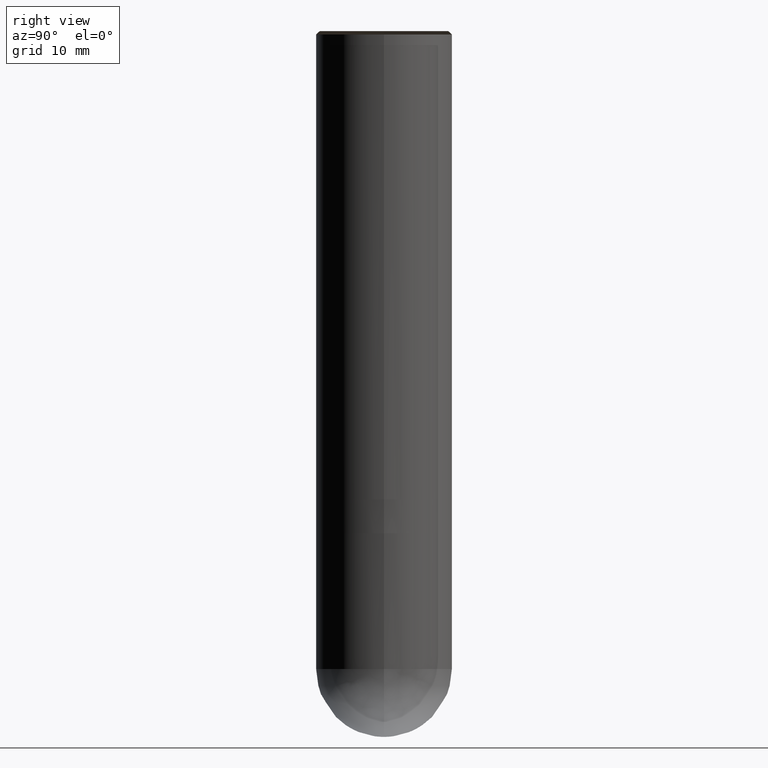
[diagram: clean part render]
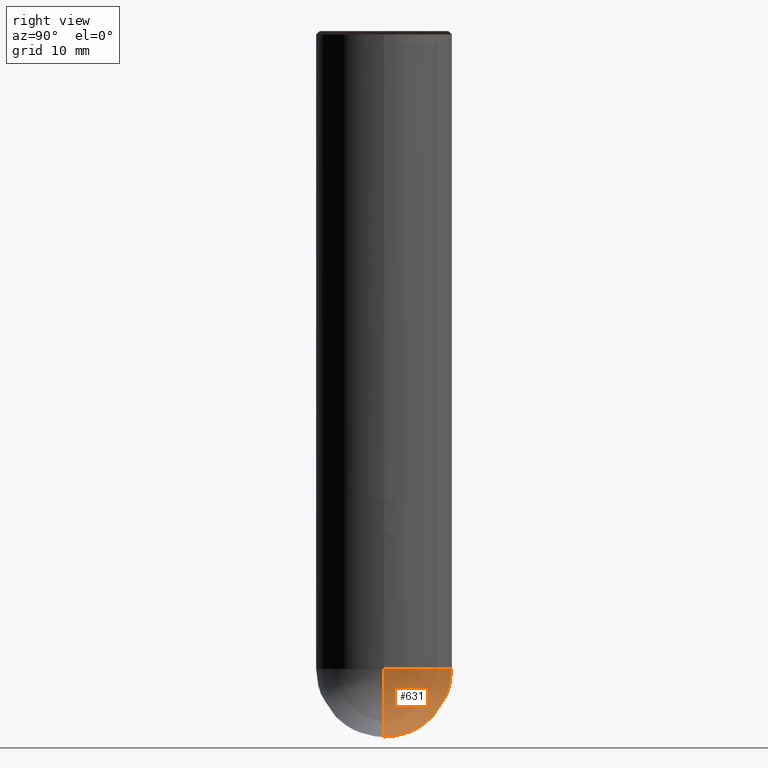
[diagram: same view with one face highlighted and labeled with its STEP entity id]
A machine part, right view. The second image highlights one B-rep face of the part: STEP entity #631.
In plain terms, the highlighted face is a freeform B-spline surface patch.
Its self-contained STEP definition (entity closure, byte-faithful):
#560=CARTESIAN_POINT('',(0.0,0.0,-35.0));
#561=CARTESIAN_POINT('',(10.0,0.0,-35.0));
#562=CARTESIAN_POINT('',(10.0,10.0,-35.0));
#563=CARTESIAN_POINT('',(0.0,10.0,-35.0));
#564=CARTESIAN_POINT('',(-10.0,10.0,-35.0));
#565=CARTESIAN_POINT('',(-10.0,0.0,-35.0));
#566=CARTESIAN_POINT('',(10.0,0.0,-25.0));
#567=CARTESIAN_POINT('',(10.0,10.0,-25.0));
#568=CARTESIAN_POINT('',(0.0,10.0,-25.0));
#569=CARTESIAN_POINT('',(-10.0,10.0,-25.0));
#570=CARTESIAN_POINT('',(-10.0,0.0,-25.0));
#616=(
BOUNDED_SURFACE()
B_SPLINE_SURFACE(2,2,(
(#560,#560,#560,#560,#560),
(#561,#562,#563,#564,#565),
(#566,#567,#568,#569,#570)
), .UNSPECIFIED.,.F.,.F.,.F.)
B_SPLINE_SURFACE_WITH_KNOTS((3,3),(3,2,3),(
0.0,1.0),(
0.0,0.5,1.0), .UNSPECIFIED.)
GEOMETRIC_REPRESENTATION_ITEM()
RATIONAL_B_SPLINE_SURFACE(((1.0,0.707106781187,1.0,0.707106781187,1.0),
(0.707106781187,0.5,0.707106781187,0.5,0.707106781187),
(1.0,0.707106781187,1.0,0.707106781187,1.0)
))
REPRESENTATION_ITEM('')
SURFACE()
);
#617=(
BOUNDED_CURVE()
B_SPLINE_CURVE(2,(#570,#565,#560),.UNSPECIFIED.,.F.,.F.)
B_SPLINE_CURVE_WITH_KNOTS((3,3),
(0.0,1.0),.UNSPECIFIED.)
CURVE()
GEOMETRIC_REPRESENTATION_ITEM()
RATIONAL_B_SPLINE_CURVE((1.0,0.707106781187,1.0))
REPRESENTATION_ITEM('')
);
#618=(
BOUNDED_CURVE()
B_SPLINE_CURVE(2,(#560,#561,#566),.UNSPECIFIED.,.F.,.F.)
B_SPLINE_CURVE_WITH_KNOTS((3,3),
(0.0,1.0),.UNSPECIFIED.)
CURVE()
GEOMETRIC_REPRESENTATION_ITEM()
RATIONAL_B_SPLINE_CURVE((1.0,0.707106781187,1.0))
REPRESENTATION_ITEM('')
);
#619=(
BOUNDED_CURVE()
B_SPLINE_CURVE(2,(#566,#567,#568,#569,#570),.UNSPECIFIED.,.F.,.F.)
B_SPLINE_CURVE_WITH_KNOTS((3,2,3),
(0.0,0.5,1.0),.UNSPECIFIED.)
CURVE()
GEOMETRIC_REPRESENTATION_ITEM()
RATIONAL_B_SPLINE_CURVE((1.0,0.707106781187,1.0,0.707106781187,1.0))
REPRESENTATION_ITEM('')
);
#620=VERTEX_POINT('',#560);
#621=VERTEX_POINT('',#566);
#622=VERTEX_POINT('',#570);
#623=EDGE_CURVE('',#622,#620,#617,.T.);
#624=EDGE_CURVE('',#620,#621,#618,.T.);
#625=EDGE_CURVE('',#621,#622,#619,.T.);
#626=ORIENTED_EDGE('',*,*,#623,.T.);
#627=ORIENTED_EDGE('',*,*,#624,.T.);
#628=ORIENTED_EDGE('',*,*,#625,.T.);
#629=EDGE_LOOP('',(#626,#627,#628));
#630=FACE_OUTER_BOUND('',#629,.T.);
#631=ADVANCED_FACE('',(#630),#616,.T.);